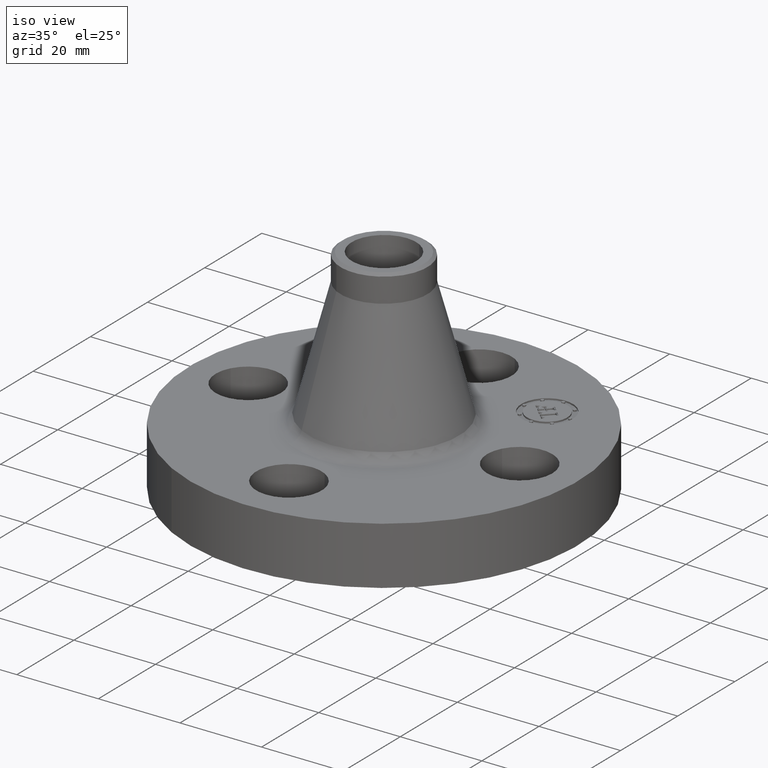
[diagram: clean part render]
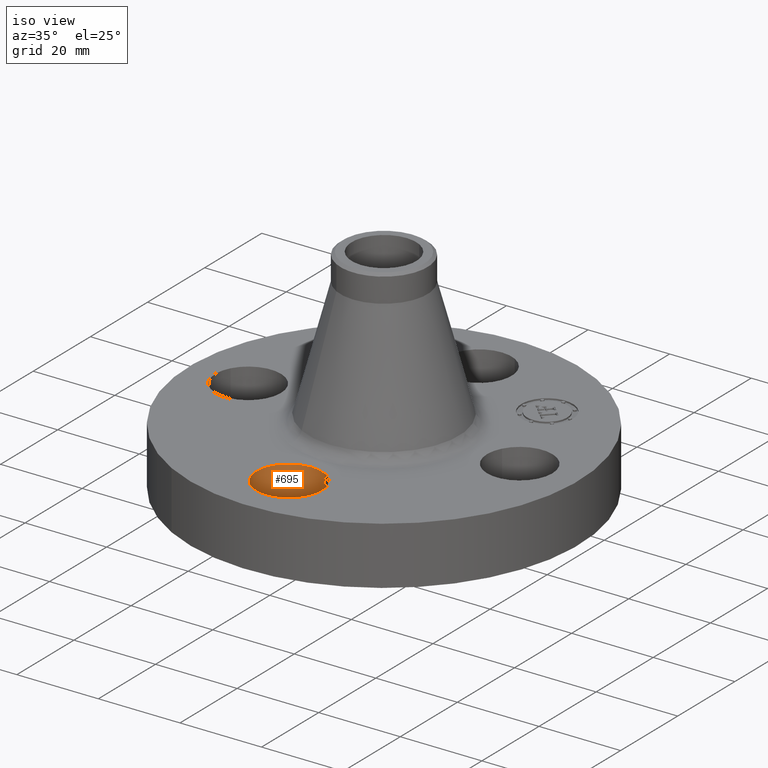
[diagram: same view with one face highlighted and labeled with its STEP entity id]
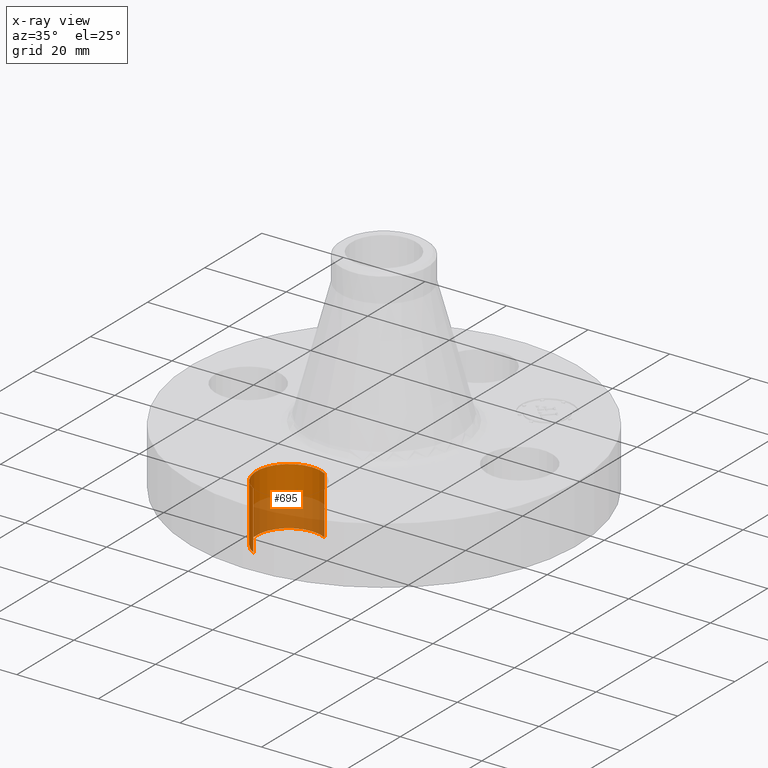
[diagram: x-ray of the same camera — body ghosted, the highlighted face saturated]
A machine part, iso view. The second image highlights one B-rep face of the part: STEP entity #695.
The next image is the same camera in x-ray: the body ghosted, the highlighted face saturated — about 47% of this face is hidden behind the body in this view.
In plain terms, the highlighted cylindrical surface (partial cylindrical patch) has radius 8.001 mm, axis along (0, -0, -1).
Its self-contained STEP definition (entity closure, byte-faithful):
#523=AXIS2_PLACEMENT_3D('Circle Axis2P3D',#521,#522,$) ;
#656=AXIS2_PLACEMENT_3D('Cylinder Axis2P3D',#653,#654,#655) ;
#686=AXIS2_PLACEMENT_3D('Circle Axis2P3D',#684,#685,$) ;
#516=CARTESIAN_POINT('Vertex',(0.151019044661,-1.03356149301,0.)) ;
#518=CARTESIAN_POINT('Vertex',(-0.151019044661,-1.586438507,6.99353086378E-017)) ;
#521=CARTESIAN_POINT('Axis2P3D Location',(-1.39870617276E-016,-1.31000000001,0.)) ;
#653=CARTESIAN_POINT('Axis2P3D Location',(-1.99526869207E-016,-1.31000000001,0.556062992128)) ;
#658=CARTESIAN_POINT('Line Origine',(0.151019044661,-1.03356149301,0.280000000001)) ;
#662=CARTESIAN_POINT('Vertex',(0.151019044661,-1.03356149301,0.560000000002)) ;
#665=CARTESIAN_POINT('Line Origine',(-0.151019044661,-1.586438507,0.280000000001)) ;
#669=CARTESIAN_POINT('Vertex',(-0.151019044661,-1.586438507,0.560000000002)) ;
#684=CARTESIAN_POINT('Axis2P3D Location',(-1.99526869207E-016,-1.31000000001,0.560000000002)) ;
#522=DIRECTION('Axis2P3D Direction',(0.,0.,-0.0393700787402)) ;
#654=DIRECTION('Axis2P3D Direction',(0.,-0.,-0.0393700787402)) ;
#655=DIRECTION('Axis2P3D XDirection',(-0.0188750212049,-0.0345504945626,0.)) ;
#659=DIRECTION('Vector Direction',(0.,0.,-0.0393700787402)) ;
#666=DIRECTION('Vector Direction',(0.,0.,-0.0393700787402)) ;
#685=DIRECTION('Axis2P3D Direction',(0.,-0.,-0.0393700787402)) ;
#660=VECTOR('Line Direction',#659,0.0393700787402) ;
#667=VECTOR('Line Direction',#666,0.0393700787402) ;
#690=ORIENTED_EDGE('',*,*,#671,.F.) ;
#691=ORIENTED_EDGE('',*,*,#525,.T.) ;
#692=ORIENTED_EDGE('',*,*,#664,.T.) ;
#693=ORIENTED_EDGE('',*,*,#688,.F.) ;
#695=ADVANCED_FACE('PartBody',(#694),#657,.F.) ;
#524=CIRCLE('generated circle',#523,0.315000000001) ;
#687=CIRCLE('generated circle',#686,0.315000000001) ;
#657=CYLINDRICAL_SURFACE('generated cylinder',#656,0.315000000001) ;
#525=EDGE_CURVE('',#519,#517,#524,.T.) ;
#664=EDGE_CURVE('',#517,#663,#661,.F.) ;
#671=EDGE_CURVE('',#519,#670,#668,.F.) ;
#688=EDGE_CURVE('',#670,#663,#687,.T.) ;
#689=EDGE_LOOP('',(#690,#691,#692,#693)) ;
#694=FACE_OUTER_BOUND('',#689,.T.) ;
#661=LINE('Line',#658,#660) ;
#668=LINE('Line',#665,#667) ;
#517=VERTEX_POINT('',#516) ;
#519=VERTEX_POINT('',#518) ;
#663=VERTEX_POINT('',#662) ;
#670=VERTEX_POINT('',#669) ;